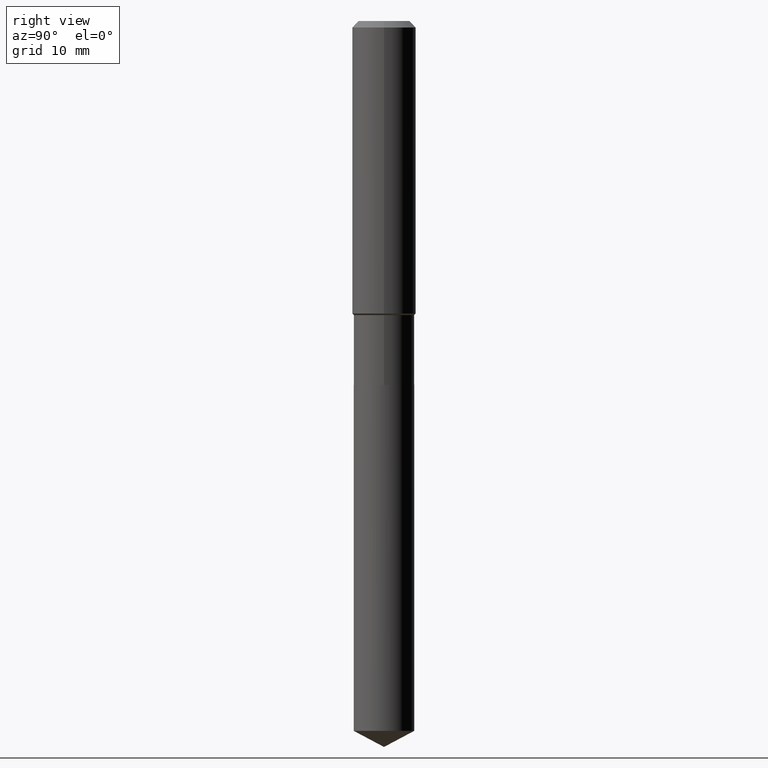
[diagram: clean part render]
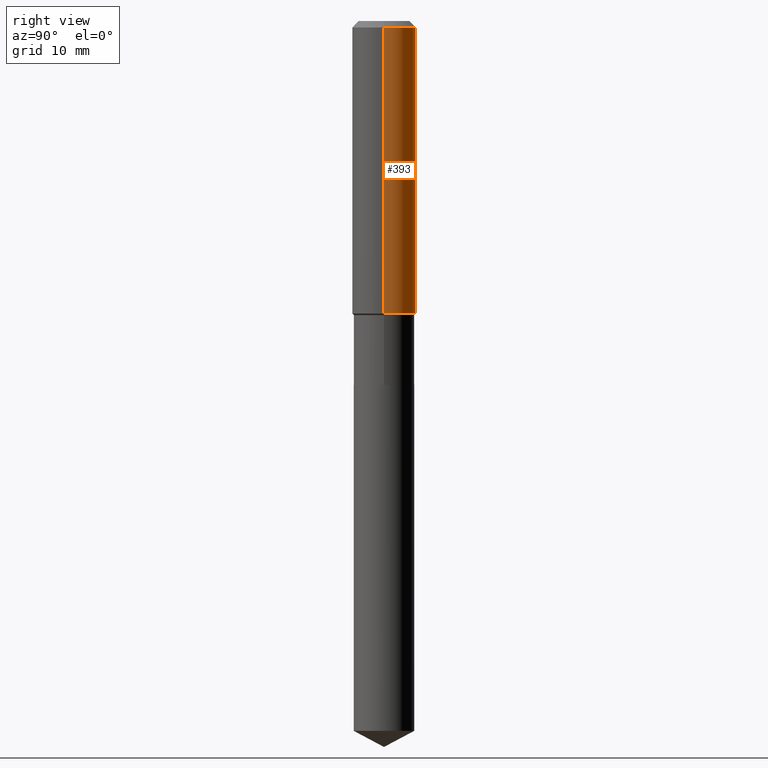
[diagram: same view with one face highlighted and labeled with its STEP entity id]
A machine part, right view. The second image highlights one B-rep face of the part: STEP entity #393.
In plain terms, the highlighted cylindrical surface (edge-blend (fillet) strip) has radius 4.0005 mm, axis along (-0, 0, 1).
Its self-contained STEP definition (entity closure, byte-faithful):
#6 = CARTESIAN_POINT ( 'NONE',  ( 0.000000000000000000, 0.000000000000000000, 0.000000000000000000 ) ) ;
#31 = DIRECTION ( 'NONE',  ( -2.445468806185136597E-29, 3.491481338843145583E-15, 1.000000000000000000 ) ) ;
#46 = EDGE_CURVE ( 'NONE', #69, #342, #437, .T. ) ;
#53 = EDGE_CURVE ( 'NONE', #269, #69, #418, .T. ) ;
#69 = VERTEX_POINT ( 'NONE', #486 ) ;
#111 = ORIENTED_EDGE ( 'NONE', *, *, #401, .T. ) ;
#119 = EDGE_CURVE ( 'NONE', #378, #342, #406, .T. ) ;
#120 = FACE_OUTER_BOUND ( 'NONE', #489, .T. ) ;
#122 = DIRECTION ( 'NONE',  ( -2.445468806185136877E-29, 3.491481338843145188E-15, 1.000000000000000000 ) ) ;
#127 = CARTESIAN_POINT ( 'NONE',  ( 0.1575000000000001676, -6.139071638087900053E-15, -1.443299999999999805 ) ) ;
#140 = CARTESIAN_POINT ( 'NONE',  ( 7.703226739483226971E-31, -1.099816621735597538E-16, -0.03150000000000019451 ) ) ;
#186 = DIRECTION ( 'NONE',  ( 1.000000000000000000, -6.982962677686265922E-15, 0.000000000000000000 ) ) ;
#239 = CYLINDRICAL_SURFACE ( 'NONE', #473, 0.1575000000000000844 ) ;
#243 = AXIS2_PLACEMENT_3D ( 'NONE', #140, #31, #186 ) ;
#248 = ORIENTED_EDGE ( 'NONE', *, *, #46, .F. ) ;
#269 = VERTEX_POINT ( 'NONE', #127 ) ;
#276 = DIRECTION ( 'NONE',  ( -2.445468806185136597E-29, 3.491481338843145583E-15, 1.000000000000000000 ) ) ;
#284 = ORIENTED_EDGE ( 'NONE', *, *, #119, .T. ) ;
#294 = VECTOR ( 'NONE', #337, 39.37007874015748143 ) ;
#310 = CARTESIAN_POINT ( 'NONE',  ( 0.1575000000000000844, -1.099816621735587677E-15, 7.679978421878603638E-30 ) ) ;
#316 = CARTESIAN_POINT ( 'NONE',  ( 3.529545127967007664E-29, -5.039255016352311783E-15, -1.443299999999999805 ) ) ;
#321 = CARTESIAN_POINT ( 'NONE',  ( -0.1575000000000000011, -1.455513530440777031E-15, -0.03150000000000019451 ) ) ;
#337 = DIRECTION ( 'NONE',  ( -2.445468806185136877E-29, 3.491481338843145188E-15, 1.000000000000000000 ) ) ;
#342 = VERTEX_POINT ( 'NONE', #321 ) ;
#353 = CARTESIAN_POINT ( 'NONE',  ( -0.1575000000000001676, -3.920150207530152602E-15, -1.443299999999999805 ) ) ;
#366 = VECTOR ( 'NONE', #122, 39.37007874015748143 ) ;
#378 = VERTEX_POINT ( 'NONE', #353 ) ;
#381 = ORIENTED_EDGE ( 'NONE', *, *, #53, .F. ) ;
#388 = DIRECTION ( 'NONE',  ( -2.445468806185136597E-29, 3.491481338843145583E-15, 1.000000000000000000 ) ) ;
#391 = DIRECTION ( 'NONE',  ( 1.000000000000000000, -6.982962677686267499E-15, 4.876176775795936353E-29 ) ) ;
#393 = ADVANCED_FACE ( 'NONE', ( #120 ), #239, .T. ) ;
#396 = AXIS2_PLACEMENT_3D ( 'NONE', #316, #276, #458 ) ;
#401 = EDGE_CURVE ( 'NONE', #269, #378, #453, .T. ) ;
#406 = LINE ( 'NONE', #424, #366 ) ;
#418 = LINE ( 'NONE', #310, #294 ) ;
#424 = CARTESIAN_POINT ( 'NONE',  ( -0.1575000000000000844, 1.119104808822158392E-15, -7.747322767151481189E-30 ) ) ;
#437 = CIRCLE ( 'NONE', #243, 0.1575000000000000011 ) ;
#453 = CIRCLE ( 'NONE', #396, 0.1575000000000001676 ) ;
#458 = DIRECTION ( 'NONE',  ( 1.000000000000000000, -6.982962677686267499E-15, 0.000000000000000000 ) ) ;
#473 = AXIS2_PLACEMENT_3D ( 'NONE', #6, #388, #391 ) ;
#486 = CARTESIAN_POINT ( 'NONE',  ( 0.1575000000000000011, -1.209798283909146741E-15, -0.03150000000000019451 ) ) ;
#489 = EDGE_LOOP ( 'NONE', ( #111, #284, #248, #381 ) ) ;